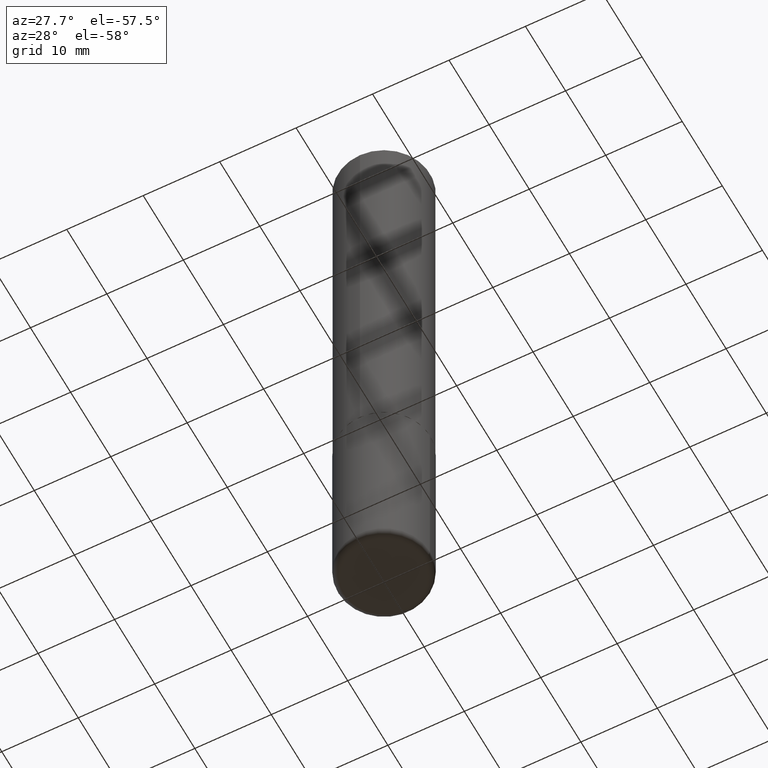
[diagram: clean part render]
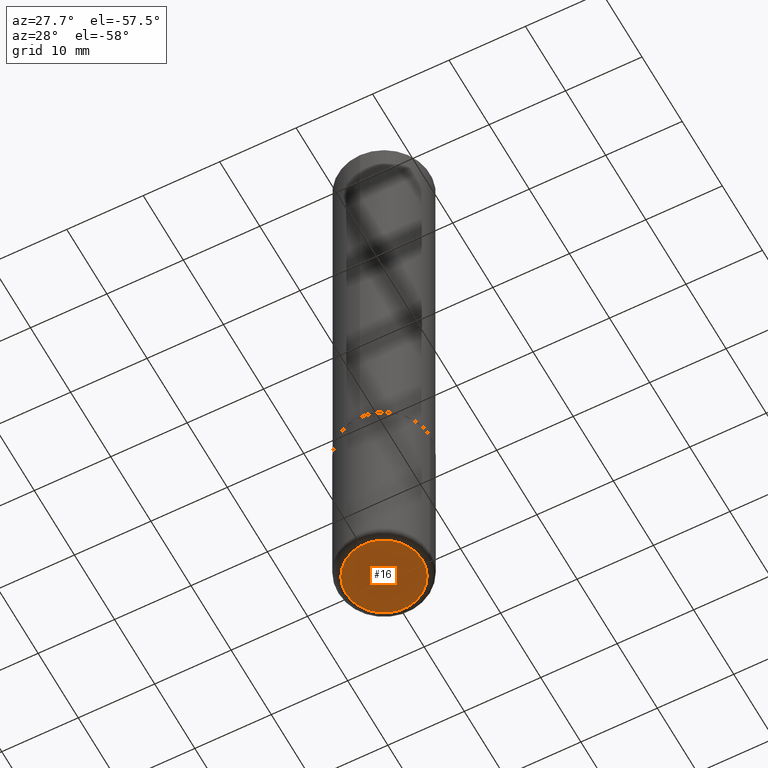
[diagram: same view with one face highlighted and labeled with its STEP entity id]
A machine part, auxiliary view. The second image highlights one B-rep face of the part: STEP entity #16.
In plain terms, the highlighted planar face has unit normal (0, -0, -1).
Its self-contained STEP definition (entity closure, byte-faithful):
#8 = DIRECTION ( 'NONE',  ( -2.445468806185136597E-29, 3.491481338843145583E-15, 1.000000000000000000 ) ) ;
#16 = ADVANCED_FACE ( 'NONE', ( #102 ), #63, .T. ) ;
#44 = VERTEX_POINT ( 'NONE', #95 ) ;
#63 = PLANE ( 'NONE',  #159 ) ;
#92 = CARTESIAN_POINT ( 'NONE',  ( 7.991058417971171713E-29, -1.140911357093774644E-14, -3.267700000000000049 ) ) ;
#95 = CARTESIAN_POINT ( 'NONE',  ( 0.1968000000000000027, -1.278336062590640454E-14, -3.267700000000000049 ) ) ;
#102 = FACE_OUTER_BOUND ( 'NONE', #241, .T. ) ;
#155 = EDGE_CURVE ( 'NONE', #44, #210, #262, .T. ) ;
#159 = AXIS2_PLACEMENT_3D ( 'NONE', #92, #352, #323 ) ;
#168 = EDGE_CURVE ( 'NONE', #210, #44, #364, .T. ) ;
#191 = AXIS2_PLACEMENT_3D ( 'NONE', #269, #393, #369 ) ;
#209 = DIRECTION ( 'NONE',  ( 1.000000000000000000, -6.982962677686271444E-15, 0.000000000000000000 ) ) ;
#210 = VERTEX_POINT ( 'NONE', #266 ) ;
#241 = EDGE_LOOP ( 'NONE', ( #255, #317 ) ) ;
#255 = ORIENTED_EDGE ( 'NONE', *, *, #155, .F. ) ;
#262 = CIRCLE ( 'NONE', #295, 0.1968000000000000027 ) ;
#266 = CARTESIAN_POINT ( 'NONE',  ( -0.1968000000000000027, -9.802006365641922115E-15, -3.267700000000000049 ) ) ;
#269 = CARTESIAN_POINT ( 'NONE',  ( 7.991058417971171713E-29, -1.140911357093774644E-14, -3.267700000000000049 ) ) ;
#295 = AXIS2_PLACEMENT_3D ( 'NONE', #304, #8, #209 ) ;
#304 = CARTESIAN_POINT ( 'NONE',  ( 7.991058417971171713E-29, -1.140911357093774644E-14, -3.267700000000000049 ) ) ;
#317 = ORIENTED_EDGE ( 'NONE', *, *, #168, .F. ) ;
#323 = DIRECTION ( 'NONE',  ( -1.000000000000000000, 6.982962677686265922E-15, -4.876176775795935793E-29 ) ) ;
#352 = DIRECTION ( 'NONE',  ( 2.438088387897960049E-29, -3.491481338843145188E-15, -1.000000000000000000 ) ) ;
#364 = CIRCLE ( 'NONE', #191, 0.1968000000000000027 ) ;
#369 = DIRECTION ( 'NONE',  ( 1.000000000000000000, -6.982962677686271444E-15, 0.000000000000000000 ) ) ;
#393 = DIRECTION ( 'NONE',  ( -2.445468806185136597E-29, 3.491481338843145583E-15, 1.000000000000000000 ) ) ;